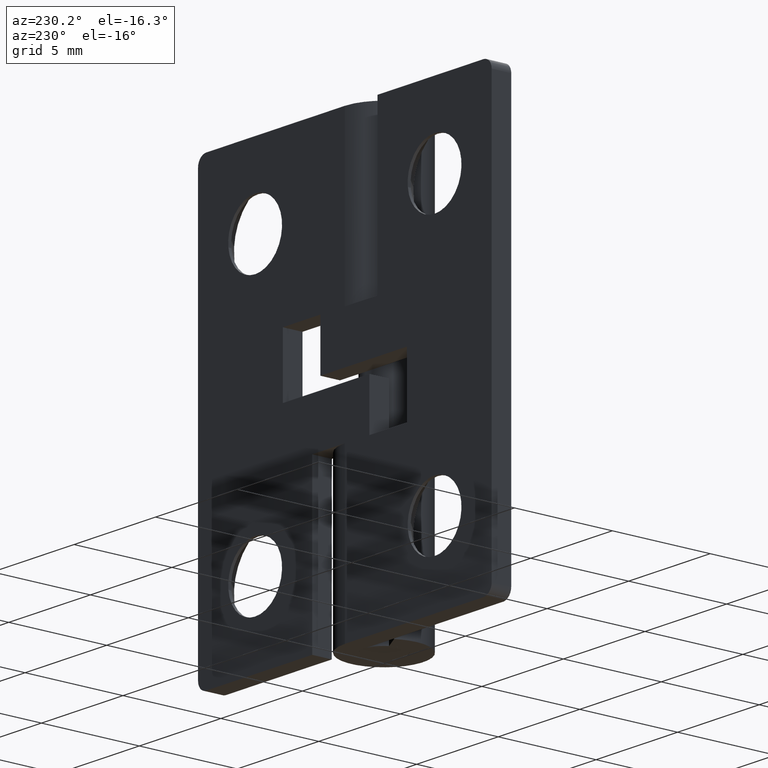
[diagram: clean part render]
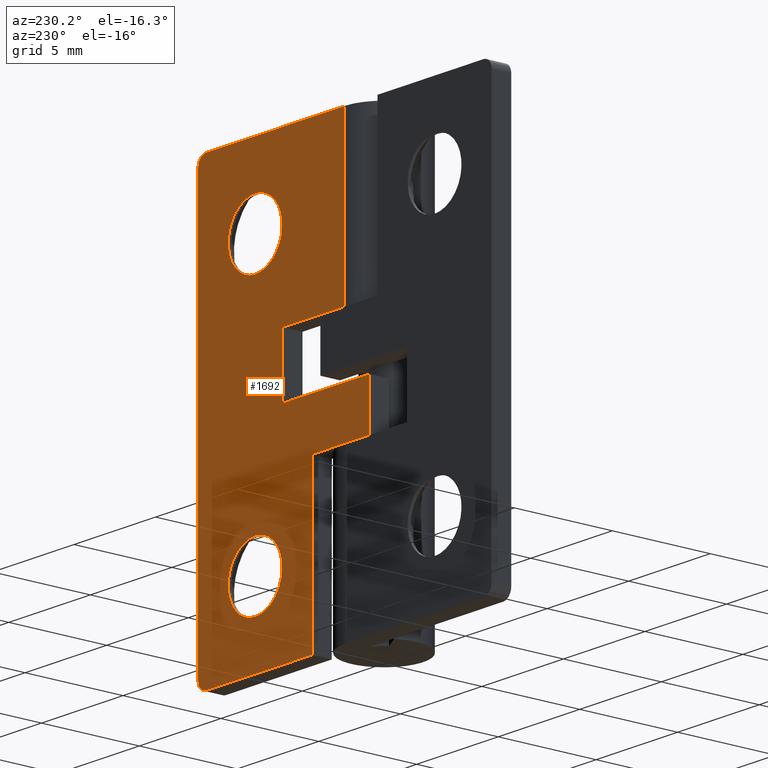
[diagram: same view with one face highlighted and labeled with its STEP entity id]
A machine part, auxiliary view. The second image highlights one B-rep face of the part: STEP entity #1692.
In plain terms, the highlighted face is a freeform B-spline surface patch.
Its self-contained STEP definition (entity closure, byte-faithful):
#472=CARTESIAN_POINT('',(7.139224163146094,2.0,17.811733850737891));
#473=VERTEX_POINT('',#472);
#479=CARTESIAN_POINT('',(5.500000000000000,2.0,16.350000000000001));
#480=VERTEX_POINT('',#479);
#481=CARTESIAN_POINT('',(7.139224163146094,2.000000000000000,17.811733850737891));
#482=CARTESIAN_POINT('',(6.971342864677723,1.999999999999999,16.350000000000005));
#483=CARTESIAN_POINT('',(5.500000000000000,2.0,16.350000000000001));
#491=(BOUNDED_CURVE()B_SPLINE_CURVE(2,(#481,#482,#483),.UNSPECIFIED.,.F.,.U.)B_SPLINE_CURVE_WITH_KNOTS((3,3),(0.269767766704691,0.500000000000000),.UNSPECIFIED.)CURVE()GEOMETRIC_REPRESENTATION_ITEM()RATIONAL_B_SPLINE_CURVE((0.957343715101236,0.730266160462109,1.0))REPRESENTATION_ITEM(''));
#492=EDGE_CURVE('',#473,#480,#491,.T.);
#494=CARTESIAN_POINT('',(3.853077582628409,2.0,17.899269909367082));
#495=VERTEX_POINT('',#494);
#496=CARTESIAN_POINT('',(5.500000000000000,2.0,16.350000000000001));
#497=CARTESIAN_POINT('',(3.947834990361753,2.0,16.350000000000005));
#498=CARTESIAN_POINT('',(3.853077582628410,2.0,17.899269909367082));
#506=(BOUNDED_CURVE()B_SPLINE_CURVE(2,(#496,#497,#498),.UNSPECIFIED.,.F.,.U.)B_SPLINE_CURVE_WITH_KNOTS((3,3),(0.500000000000000,0.739332962158068),.UNSPECIFIED.)CURVE()GEOMETRIC_REPRESENTATION_ITEM()RATIONAL_B_SPLINE_CURVE((1.0,0.719603993381462,0.976072041493387))REPRESENTATION_ITEM(''));
#507=EDGE_CURVE('',#480,#495,#506,.T.);
#602=CARTESIAN_POINT('',(5.500000000000000,2.0,19.649999999999999));
#603=VERTEX_POINT('',#602);
#604=CARTESIAN_POINT('',(3.853077582628409,2.000000000000000,17.899269909367074));
#605=CARTESIAN_POINT('',(3.850000000000000,2.000000000000000,17.949587940155791));
#606=CARTESIAN_POINT('',(3.850000000000000,2.0,18.0));
#607=CARTESIAN_POINT('',(3.850000000000000,2.000000000000000,19.649999999999999));
#608=CARTESIAN_POINT('',(5.500000000000000,2.0,19.649999999999999));
#616=(BOUNDED_CURVE()B_SPLINE_CURVE(2,(#604,#605,#606,#607,#608),.UNSPECIFIED.,.F.,.U.)B_SPLINE_CURVE_WITH_KNOTS((3,2,3),(0.739332962158067,0.750000000000000,1.0),.UNSPECIFIED.)CURVE()GEOMETRIC_REPRESENTATION_ITEM()RATIONAL_B_SPLINE_CURVE((0.976072041493386,0.987502787805086,1.0,0.707106781186548,1.0))REPRESENTATION_ITEM(''));
#617=EDGE_CURVE('',#495,#603,#616,.T.);
#619=CARTESIAN_POINT('',(5.500000000000000,2.0,19.649999999999999));
#620=CARTESIAN_POINT('',(7.150000000000002,2.000000000000000,19.649999999999999));
#621=CARTESIAN_POINT('',(7.150000000000000,2.0,18.0));
#622=CARTESIAN_POINT('',(7.150000000000000,2.0,17.905558509250088));
#623=CARTESIAN_POINT('',(7.139224163146094,2.0,17.811733850737884));
#631=(BOUNDED_CURVE()B_SPLINE_CURVE(2,(#619,#620,#621,#622,#623),.UNSPECIFIED.,.F.,.U.)B_SPLINE_CURVE_WITH_KNOTS((3,2,3),(0.0,0.250000000000000,0.269767766704691),.UNSPECIFIED.)CURVE()GEOMETRIC_REPRESENTATION_ITEM()RATIONAL_B_SPLINE_CURVE((1.0,0.707106781186548,1.0,0.976840620724439,0.957343715101236))REPRESENTATION_ITEM(''));
#632=EDGE_CURVE('',#603,#473,#631,.T.);
#800=CARTESIAN_POINT('',(7.139224163146094,2.0,3.811733850737889));
#801=VERTEX_POINT('',#800);
#807=CARTESIAN_POINT('',(5.500000000000000,2.0,2.350000000000000));
#808=VERTEX_POINT('',#807);
#809=CARTESIAN_POINT('',(7.139224163146094,2.0,3.811733850737890));
#810=CARTESIAN_POINT('',(6.971342864677727,2.000000000000000,2.350000000000000));
#811=CARTESIAN_POINT('',(5.500000000000000,2.0,2.350000000000000));
#819=(BOUNDED_CURVE()B_SPLINE_CURVE(2,(#809,#810,#811),.UNSPECIFIED.,.F.,.U.)B_SPLINE_CURVE_WITH_KNOTS((3,3),(0.269767766704691,0.500000000000000),.UNSPECIFIED.)CURVE()GEOMETRIC_REPRESENTATION_ITEM()RATIONAL_B_SPLINE_CURVE((0.957343715101236,0.730266160462109,1.0))REPRESENTATION_ITEM(''));
#820=EDGE_CURVE('',#801,#808,#819,.T.);
#822=CARTESIAN_POINT('',(3.853077582628410,2.0,3.899269909367077));
#823=VERTEX_POINT('',#822);
#824=CARTESIAN_POINT('',(5.500000000000000,2.0,2.350000000000000));
#825=CARTESIAN_POINT('',(3.947834990361753,2.0,2.350000000000001));
#826=CARTESIAN_POINT('',(3.853077582628410,2.0,3.899269909367077));
#834=(BOUNDED_CURVE()B_SPLINE_CURVE(2,(#824,#825,#826),.UNSPECIFIED.,.F.,.U.)B_SPLINE_CURVE_WITH_KNOTS((3,3),(0.500000000000000,0.739332962158068),.UNSPECIFIED.)CURVE()GEOMETRIC_REPRESENTATION_ITEM()RATIONAL_B_SPLINE_CURVE((1.0,0.719603993381462,0.976072041493387))REPRESENTATION_ITEM(''));
#835=EDGE_CURVE('',#808,#823,#834,.T.);
#930=CARTESIAN_POINT('',(5.500000000000000,2.0,5.650000000000000));
#931=VERTEX_POINT('',#930);
#932=CARTESIAN_POINT('',(3.853077582628410,2.0,3.899269909367078));
#933=CARTESIAN_POINT('',(3.850000000000000,2.0,3.949587940155796));
#934=CARTESIAN_POINT('',(3.850000000000000,2.0,4.0));
#935=CARTESIAN_POINT('',(3.850000000000000,2.000000000000000,5.650000000000000));
#936=CARTESIAN_POINT('',(5.500000000000000,2.0,5.650000000000000));
#944=(BOUNDED_CURVE()B_SPLINE_CURVE(2,(#932,#933,#934,#935,#936),.UNSPECIFIED.,.F.,.U.)B_SPLINE_CURVE_WITH_KNOTS((3,2,3),(0.739332962158067,0.750000000000000,1.0),.UNSPECIFIED.)CURVE()GEOMETRIC_REPRESENTATION_ITEM()RATIONAL_B_SPLINE_CURVE((0.976072041493385,0.987502787805085,1.0,0.707106781186548,1.0))REPRESENTATION_ITEM(''));
#945=EDGE_CURVE('',#823,#931,#944,.T.);
#947=CARTESIAN_POINT('',(5.500000000000000,2.0,5.650000000000000));
#948=CARTESIAN_POINT('',(7.150000000000002,2.000000000000000,5.650000000000000));
#949=CARTESIAN_POINT('',(7.150000000000000,2.0,4.0));
#950=CARTESIAN_POINT('',(7.150000000000000,2.000000000000000,3.905558509250091));
#951=CARTESIAN_POINT('',(7.139224163146096,2.000000000000000,3.811733850737889));
#959=(BOUNDED_CURVE()B_SPLINE_CURVE(2,(#947,#948,#949,#950,#951),.UNSPECIFIED.,.F.,.U.)B_SPLINE_CURVE_WITH_KNOTS((3,2,3),(0.0,0.250000000000000,0.269767766704691),.UNSPECIFIED.)CURVE()GEOMETRIC_REPRESENTATION_ITEM()RATIONAL_B_SPLINE_CURVE((1.0,0.707106781186548,1.0,0.976840620724439,0.957343715101236))REPRESENTATION_ITEM(''));
#960=EDGE_CURVE('',#931,#801,#959,.T.);
#1124=CARTESIAN_POINT('',(9.0,2.0,21.500000000000000));
#1125=VERTEX_POINT('',#1124);
#1131=CARTESIAN_POINT('',(8.500000000000000,2.0,22.0));
#1132=VERTEX_POINT('',#1131);
#1133=CARTESIAN_POINT('',(8.500000000000000,2.0,22.0));
#1134=CARTESIAN_POINT('',(9.000000000000002,2.000000000000000,22.000000000000007));
#1135=CARTESIAN_POINT('',(9.000000000000002,2.0,21.500000000000000));
#1143=(BOUNDED_CURVE()B_SPLINE_CURVE(2,(#1133,#1134,#1135),.UNSPECIFIED.,.F.,.U.)CURVE()GEOMETRIC_REPRESENTATION_ITEM()QUASI_UNIFORM_CURVE()RATIONAL_B_SPLINE_CURVE((1.0,0.707106781186548,1.0))REPRESENTATION_ITEM(''));
#1144=EDGE_CURVE('',#1132,#1125,#1143,.T.);
#1185=CARTESIAN_POINT('',(8.500000000000000,2.0,0.0));
#1186=VERTEX_POINT('',#1185);
#1192=CARTESIAN_POINT('',(9.0,2.0,0.499999999999945));
#1193=VERTEX_POINT('',#1192);
#1194=CARTESIAN_POINT('',(9.000000000000002,2.0,0.499999999999945));
#1195=CARTESIAN_POINT('',(9.000000000000002,2.000000000000000,-5.496905E-014));
#1196=CARTESIAN_POINT('',(8.500000000000000,2.0,0.0));
#1204=(BOUNDED_CURVE()B_SPLINE_CURVE(2,(#1194,#1195,#1196),.UNSPECIFIED.,.F.,.U.)CURVE()GEOMETRIC_REPRESENTATION_ITEM()QUASI_UNIFORM_CURVE()RATIONAL_B_SPLINE_CURVE((1.0,0.707106781186548,1.0))REPRESENTATION_ITEM(''));
#1205=EDGE_CURVE('',#1193,#1186,#1204,.T.);
#1220=CARTESIAN_POINT('',(2.0,2.0,8.199997000000000));
#1221=VERTEX_POINT('',#1220);
#1222=CARTESIAN_POINT('',(-1.500000000000000,2.0,8.199997000000000));
#1223=VERTEX_POINT('',#1222);
#1224=CARTESIAN_POINT('',(2.0,2.0,8.199997000000000));
#1225=CARTESIAN_POINT('',(-1.500000000000000,2.0,8.199997000000000));
#1226=QUASI_UNIFORM_CURVE('',1,(#1224,#1225),.UNSPECIFIED.,.F.,.U.);
#1227=EDGE_CURVE('',#1221,#1223,#1226,.T.);
#1256=CARTESIAN_POINT('',(-1.500000000000000,2.0,10.699997000000000));
#1257=VERTEX_POINT('',#1256);
#1258=CARTESIAN_POINT('',(-1.500000000000000,2.0,8.199997000000000));
#1259=CARTESIAN_POINT('',(-1.500000000000000,2.0,10.699997000000000));
#1260=QUASI_UNIFORM_CURVE('',1,(#1258,#1259),.UNSPECIFIED.,.F.,.U.);
#1261=EDGE_CURVE('',#1223,#1257,#1260,.T.);
#1292=CARTESIAN_POINT('',(2.0,2.0,0.0));
#1293=VERTEX_POINT('',#1292);
#1294=CARTESIAN_POINT('',(2.0,2.0,8.199997000000000));
#1295=CARTESIAN_POINT('',(2.0,2.0,0.0));
#1296=QUASI_UNIFORM_CURVE('',1,(#1294,#1295),.UNSPECIFIED.,.F.,.U.);
#1297=EDGE_CURVE('',#1221,#1293,#1296,.T.);
#1319=CARTESIAN_POINT('',(3.799996000000000,2.0,10.699997000000000));
#1320=VERTEX_POINT('',#1319);
#1326=CARTESIAN_POINT('',(3.799996000000000,2.0,10.699997000000000));
#1327=CARTESIAN_POINT('',(-1.500000000000000,2.0,10.699997000000000));
#1328=QUASI_UNIFORM_CURVE('',1,(#1326,#1327),.UNSPECIFIED.,.F.,.U.);
#1329=EDGE_CURVE('',#1320,#1257,#1328,.T.);
#1347=CARTESIAN_POINT('',(3.799996000000000,2.0,13.800003000000000));
#1348=VERTEX_POINT('',#1347);
#1354=CARTESIAN_POINT('',(3.799996000000000,2.0,13.800003000000000));
#1355=CARTESIAN_POINT('',(3.799996000000000,2.0,10.699997000000000));
#1356=QUASI_UNIFORM_CURVE('',1,(#1354,#1355),.UNSPECIFIED.,.F.,.U.);
#1357=EDGE_CURVE('',#1348,#1320,#1356,.T.);
#1370=CARTESIAN_POINT('',(0.0,2.0,13.800003000000000));
#1371=VERTEX_POINT('',#1370);
#1391=CARTESIAN_POINT('',(0.0,2.0,13.800003000000000));
#1392=CARTESIAN_POINT('',(3.799996000000000,2.0,13.800003000000000));
#1393=QUASI_UNIFORM_CURVE('',1,(#1391,#1392),.UNSPECIFIED.,.F.,.U.);
#1394=EDGE_CURVE('',#1371,#1348,#1393,.T.);
#1446=CARTESIAN_POINT('',(0.0,2.0,22.0));
#1447=VERTEX_POINT('',#1446);
#1448=CARTESIAN_POINT('',(8.500000000000000,2.0,22.0));
#1449=CARTESIAN_POINT('',(0.0,2.0,22.0));
#1450=QUASI_UNIFORM_CURVE('',1,(#1448,#1449),.UNSPECIFIED.,.F.,.U.);
#1451=EDGE_CURVE('',#1132,#1447,#1450,.T.);
#1508=CARTESIAN_POINT('',(8.500000000000000,2.0,0.0));
#1509=CARTESIAN_POINT('',(2.0,2.0,0.0));
#1510=QUASI_UNIFORM_CURVE('',1,(#1508,#1509),.UNSPECIFIED.,.F.,.U.);
#1511=EDGE_CURVE('',#1186,#1293,#1510,.T.);
#1601=CARTESIAN_POINT('',(0.0,2.0,13.800003000000000));
#1602=CARTESIAN_POINT('',(0.0,2.0,22.0));
#1603=QUASI_UNIFORM_CURVE('',1,(#1601,#1602),.UNSPECIFIED.,.F.,.U.);
#1604=EDGE_CURVE('',#1371,#1447,#1603,.T.);
#1620=CARTESIAN_POINT('',(9.0,2.0,0.499999999999945));
#1621=CARTESIAN_POINT('',(9.0,2.0,21.500000000000000));
#1622=QUASI_UNIFORM_CURVE('',1,(#1620,#1621),.UNSPECIFIED.,.F.,.U.);
#1623=EDGE_CURVE('',#1193,#1125,#1622,.T.);
#1661=CARTESIAN_POINT('',(-2.024474979648963,2.0,-1.098899957359731));
#1662=CARTESIAN_POINT('',(-2.024474979648963,2.0,23.098900547445709));
#1663=CARTESIAN_POINT('',(9.524475261280909,2.0,-1.098899957359731));
#1664=CARTESIAN_POINT('',(9.524475261280909,2.0,23.098900547445709));
#1665=B_SPLINE_SURFACE_WITH_KNOTS('',1,1,((#1661,#1663),(#1662,#1664)),.UNSPECIFIED.,.F.,.F.,.U.,(2,2),(2,2),(0.0,24.197800504805439),(0.0,11.548950240929869),.UNSPECIFIED.);
#1666=ORIENTED_EDGE('',*,*,#1623,.F.);
#1667=ORIENTED_EDGE('',*,*,#1205,.T.);
#1668=ORIENTED_EDGE('',*,*,#1511,.T.);
#1669=ORIENTED_EDGE('',*,*,#1297,.F.);
#1670=ORIENTED_EDGE('',*,*,#1227,.T.);
#1671=ORIENTED_EDGE('',*,*,#1261,.T.);
#1672=ORIENTED_EDGE('',*,*,#1329,.F.);
#1673=ORIENTED_EDGE('',*,*,#1357,.F.);
#1674=ORIENTED_EDGE('',*,*,#1394,.F.);
#1675=ORIENTED_EDGE('',*,*,#1604,.T.);
#1676=ORIENTED_EDGE('',*,*,#1451,.F.);
#1677=ORIENTED_EDGE('',*,*,#1144,.T.);
#1678=EDGE_LOOP('',(#1666,#1667,#1668,#1669,#1670,#1671,#1672,#1673,#1674,#1675,#1676,#1677));
#1679=FACE_OUTER_BOUND('',#1678,.T.);
#1680=ORIENTED_EDGE('',*,*,#835,.F.);
#1681=ORIENTED_EDGE('',*,*,#820,.F.);
#1682=ORIENTED_EDGE('',*,*,#960,.F.);
#1683=ORIENTED_EDGE('',*,*,#945,.F.);
#1684=EDGE_LOOP('',(#1680,#1681,#1682,#1683));
#1685=FACE_BOUND('',#1684,.T.);
#1686=ORIENTED_EDGE('',*,*,#507,.F.);
#1687=ORIENTED_EDGE('',*,*,#492,.F.);
#1688=ORIENTED_EDGE('',*,*,#632,.F.);
#1689=ORIENTED_EDGE('',*,*,#617,.F.);
#1690=EDGE_LOOP('',(#1686,#1687,#1688,#1689));
#1691=FACE_BOUND('',#1690,.T.);
#1692=ADVANCED_FACE('',(#1679,#1685,#1691),#1665,.T.);